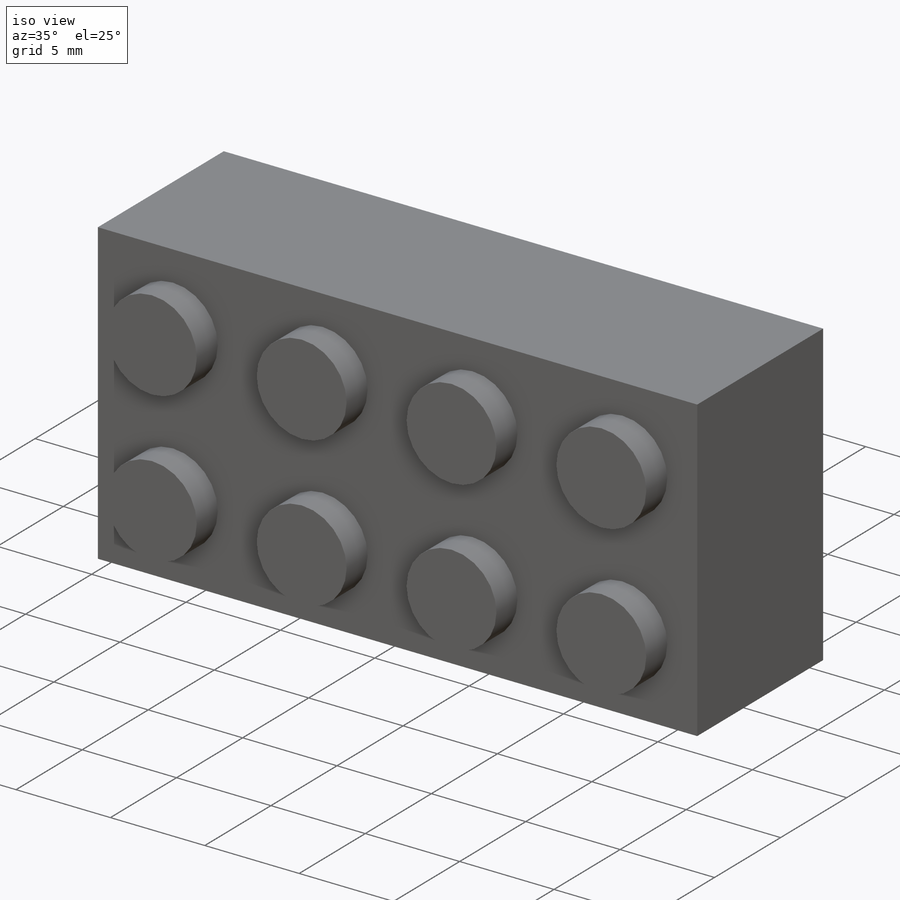
[diagram: iso view]
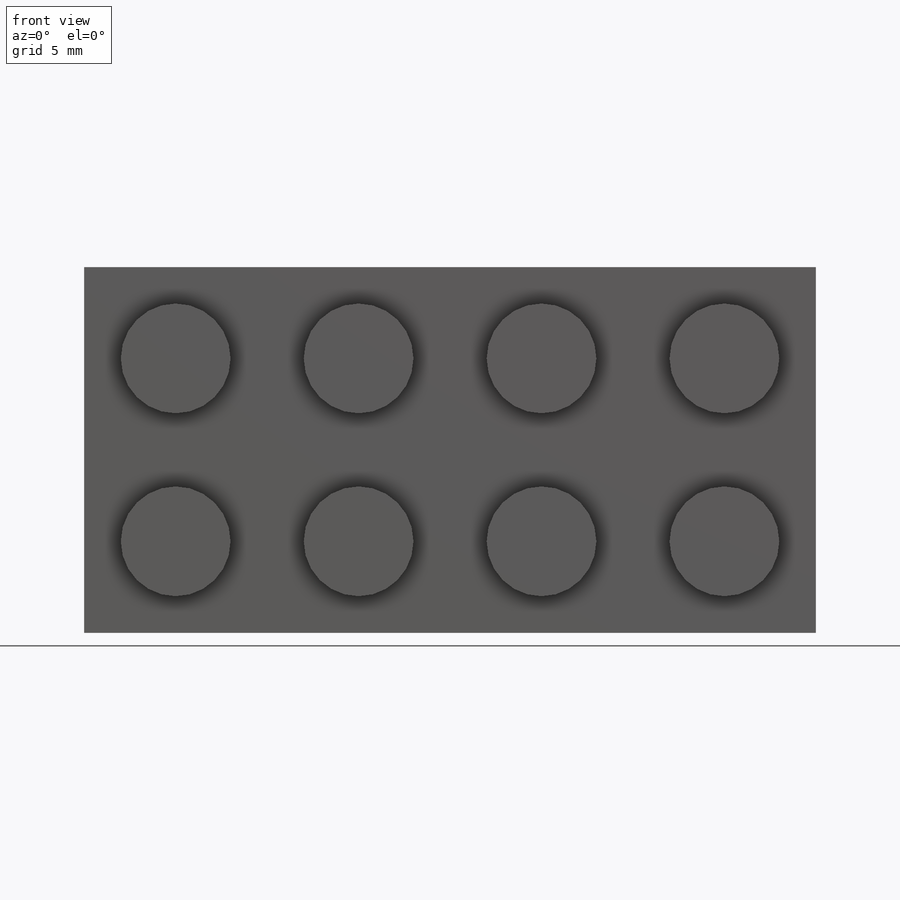
[diagram: front view]
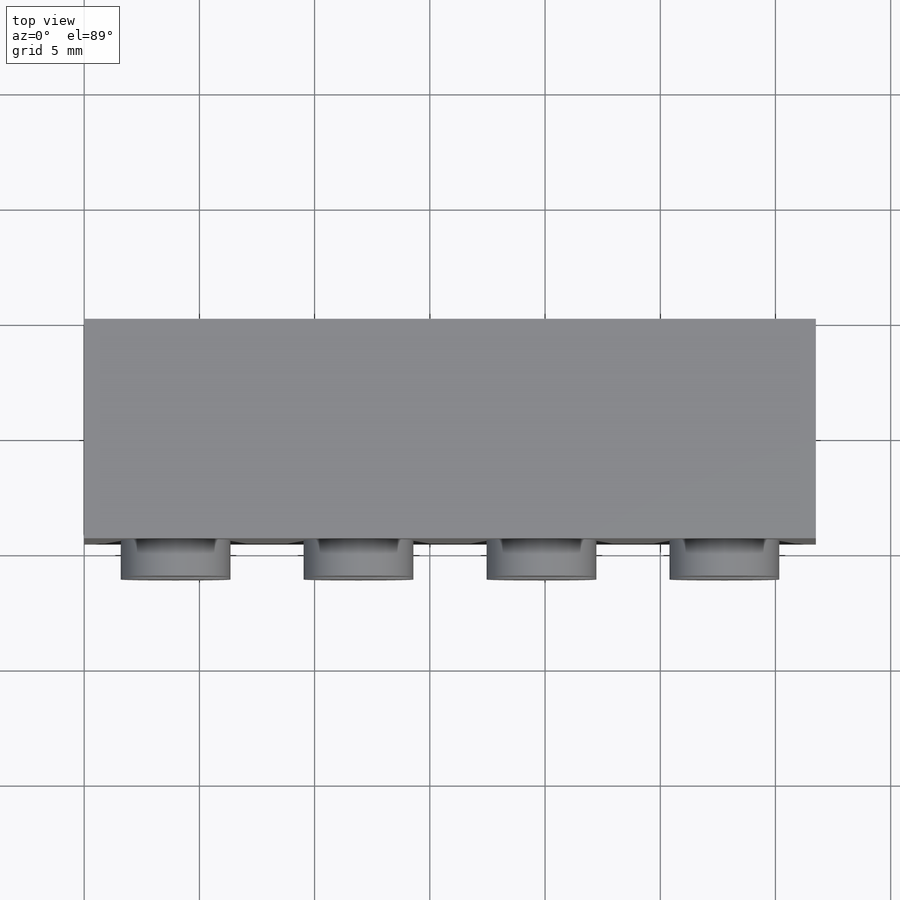
[diagram: top view]
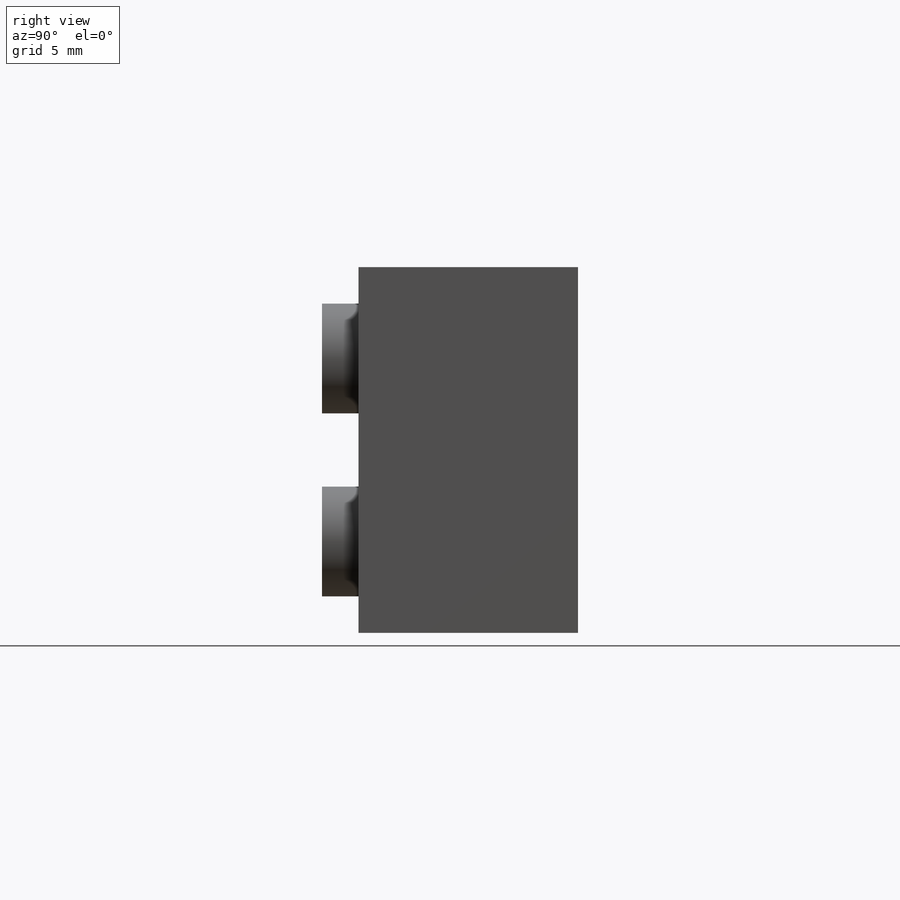
[diagram: right view]
SOLIDWORKS PART (.sldprt)
format: sldprt  version: not decoded by parser v0  size: 235,008 bytes
history: native  units: mm
features: sketch x3, extrude x3, pattern_linear x2, shell x2, material x1 + 1 further entry (+11 scaffold rows collapsed)
feature tree (23):
  scaffold x11  (default folders/planes/origin — collapsed)
  material  "Material <not specified>"
  "Annotations"  RD1=1.5875mm RD2=6.35mm RD3=4.7625mm
  sketch  "Sketch1"  dims[D1=15.875mm D2=31.75mm D3=31.75mm]
  extrude  "Main-Brick"  Depth=9.525mm
  sketch  "Sketch2"  dims[c1.D1=4.7625mm c1.D4=4.7625mm c1.D2=~3.96875mm c1.D3=~6.210228mm c2.D2=~3.96875mm c2.D3=~3.96875mm]
  extrude  "Peg"  Depth=1.5875mm
  pattern_linear  "Peg Pattern"  Count1=2 Count2=4 Spacing1=7.9375mm Spacing2=7.9375mm
  shell  "Shell-Brick"  Thickness=1.5875mm
  sketch  "Sketch3"  dims[D1=6.35mm D2=7.9375mm D3=7.9375mm]
  extrude  "Boss-Extrude5"  Depth=7.9375mm
  shell  "Shell9"  Thickness=0.79375mm
  pattern_linear  "LPattern7"  Count1=3 Count2=1 Spacing1=7.9375mm Spacing2=7.9375mm
decode coverage: 10 of 10 modeling features carry decoded parameters; 1 rows unclassified (native names shown)
note: ~ marks probable driven/reference dimensions
note: suppression state not decoded; provenance and decode notes live in map.json
